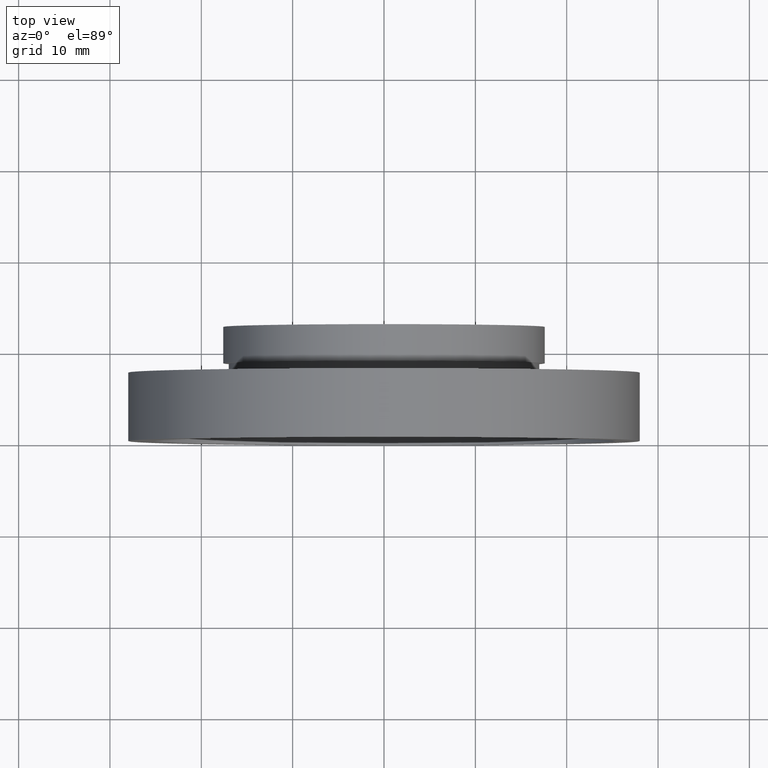
[diagram: clean part render]
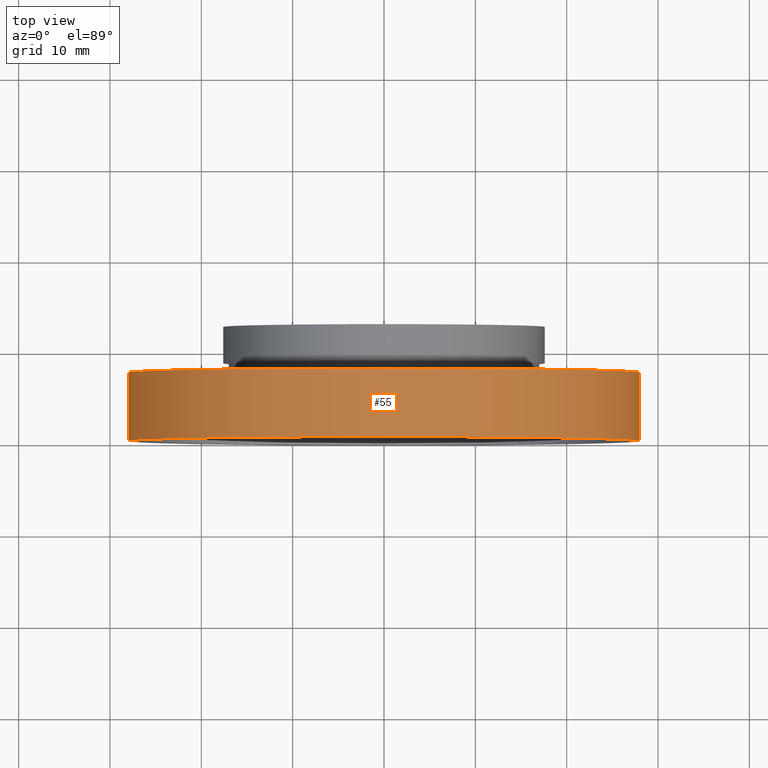
[diagram: same view with one face highlighted and labeled with its STEP entity id]
A machine part, top view. The second image highlights one B-rep face of the part: STEP entity #55.
In plain terms, the highlighted cylindrical surface (partial cylindrical patch) has radius 28 mm, axis along (-0, 1, -0).
Its self-contained STEP definition (entity closure, byte-faithful):
#26 = EDGE_CURVE ( 'NONE', #415, #554, #163, .T. ) ;
#41 = DIRECTION ( 'NONE',  ( -1.000000000000000000, -1.224646799147351200E-016, 0.0000000000000000000 ) ) ;
#55 = ADVANCED_FACE ( 'NONE', ( #173 ), #375, .T. ) ;
#83 = ORIENTED_EDGE ( 'NONE', *, *, #501, .T. ) ;
#103 = CARTESIAN_POINT ( 'NONE',  ( 1.149455719078123100E-015, 7.499999999999996400, 0.0000000000000000000 ) ) ;
#106 = CARTESIAN_POINT ( 'NONE',  ( 28.00000000000000400, -4.043591434103126100E-017, 3.429011037612589700E-015 ) ) ;
#108 = CARTESIAN_POINT ( 'NONE',  ( 2.067940818438636500E-015, -3.469446951953614200E-015, 0.0000000000000000000 ) ) ;
#145 = ORIENTED_EDGE ( 'NONE', *, *, #358, .F. ) ;
#163 = LINE ( 'NONE', #223, #419 ) ;
#173 = FACE_OUTER_BOUND ( 'NONE', #515, .T. ) ;
#214 = AXIS2_PLACEMENT_3D ( 'NONE', #103, #536, #254 ) ;
#223 = CARTESIAN_POINT ( 'NONE',  ( 27.99999999999999600, 16.88601823708208000, 3.429011037612588900E-015 ) ) ;
#227 = LINE ( 'NONE', #266, #398 ) ;
#254 = DIRECTION ( 'NONE',  ( -1.000000000000000000, -1.239088197126290800E-016, 0.0000000000000000000 ) ) ;
#256 = CARTESIAN_POINT ( 'NONE',  ( -27.99999999999999300, -6.898457989566196800E-015, 0.0000000000000000000 ) ) ;
#266 = CARTESIAN_POINT ( 'NONE',  ( -27.99999999999999600, 16.88601823708207300, 0.0000000000000000000 ) ) ;
#279 = CARTESIAN_POINT ( 'NONE',  ( -28.00000000000000000, 7.499999999999992900, 0.0000000000000000000 ) ) ;
#284 = CARTESIAN_POINT ( 'NONE',  ( 0.0000000000000000000, 16.88601823708207700, 0.0000000000000000000 ) ) ;
#317 = AXIS2_PLACEMENT_3D ( 'NONE', #284, #329, #612 ) ;
#329 = DIRECTION ( 'NONE',  ( -1.224646799147351000E-016, 1.000000000000000000, -0.0000000000000000000 ) ) ;
#358 = EDGE_CURVE ( 'NONE', #578, #554, #410, .T. ) ;
#370 = VERTEX_POINT ( 'NONE', #256 ) ;
#375 = CYLINDRICAL_SURFACE ( 'NONE', #317, 27.99999999999999600 ) ;
#377 = AXIS2_PLACEMENT_3D ( 'NONE', #108, #560, #41 ) ;
#398 = VECTOR ( 'NONE', #459, 1000.000000000000000 ) ;
#410 = CIRCLE ( 'NONE', #214, 28.00000000000000000 ) ;
#414 = ORIENTED_EDGE ( 'NONE', *, *, #26, .T. ) ;
#415 = VERTEX_POINT ( 'NONE', #106 ) ;
#417 = DIRECTION ( 'NONE',  ( -1.224646799147351000E-016, 1.000000000000000000, -0.0000000000000000000 ) ) ;
#419 = VECTOR ( 'NONE', #417, 1000.000000000000000 ) ;
#459 = DIRECTION ( 'NONE',  ( -1.224646799147351000E-016, 1.000000000000000000, -0.0000000000000000000 ) ) ;
#475 = ORIENTED_EDGE ( 'NONE', *, *, #482, .F. ) ;
#482 = EDGE_CURVE ( 'NONE', #370, #578, #227, .T. ) ;
#501 = EDGE_CURVE ( 'NONE', #370, #415, #598, .T. ) ;
#515 = EDGE_LOOP ( 'NONE', ( #83, #414, #145, #475 ) ) ;
#536 = DIRECTION ( 'NONE',  ( -1.224646799147351000E-016, 1.000000000000000000, -0.0000000000000000000 ) ) ;
#554 = VERTEX_POINT ( 'NONE', #603 ) ;
#560 = DIRECTION ( 'NONE',  ( -1.224646799147351000E-016, 1.000000000000000000, -0.0000000000000000000 ) ) ;
#578 = VERTEX_POINT ( 'NONE', #279 ) ;
#598 = CIRCLE ( 'NONE', #377, 27.99999999999999600 ) ;
#603 = CARTESIAN_POINT ( 'NONE',  ( 28.00000000000000400, 7.500000000000000000, 3.429011037612589700E-015 ) ) ;
#612 = DIRECTION ( 'NONE',  ( -1.000000000000000000, -1.239088197126290800E-016, 0.0000000000000000000 ) ) ;